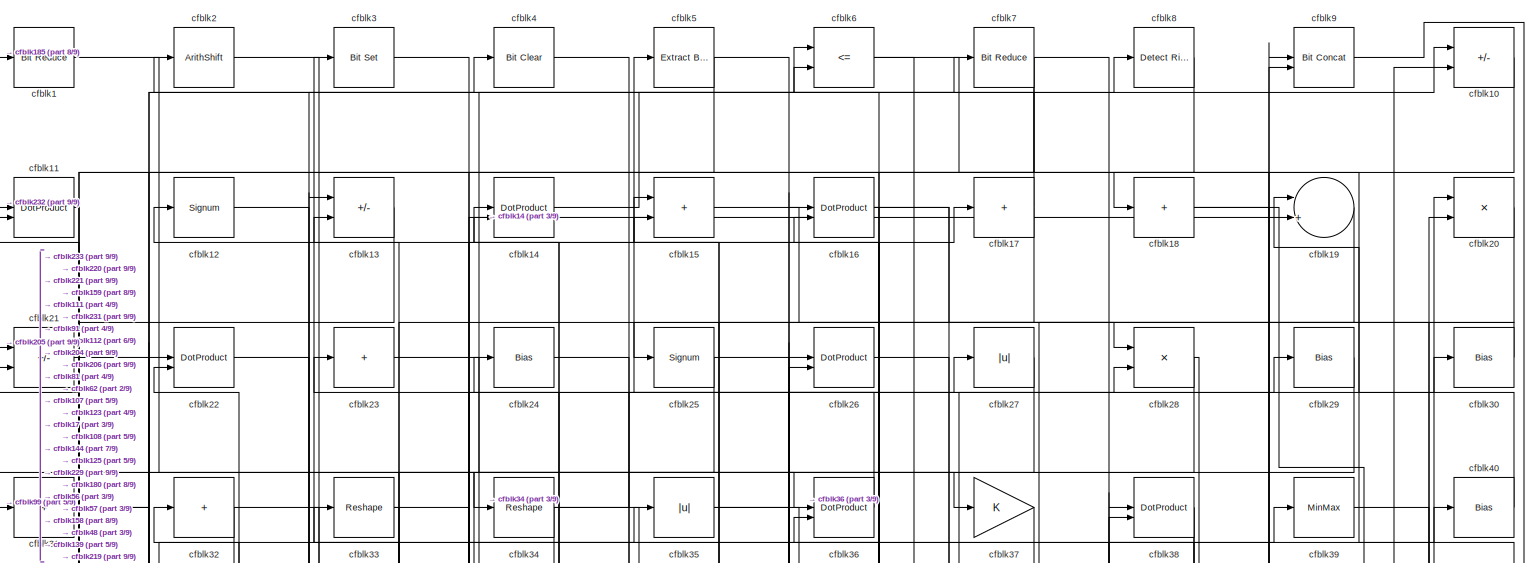
[diagram: root canvas - part 1/9, full width, top band]
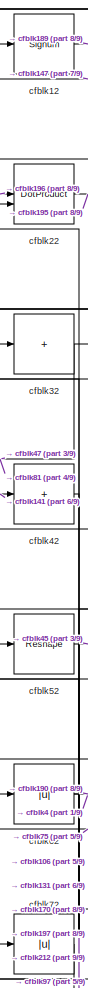
[diagram: root canvas - part 2/9, top left region]
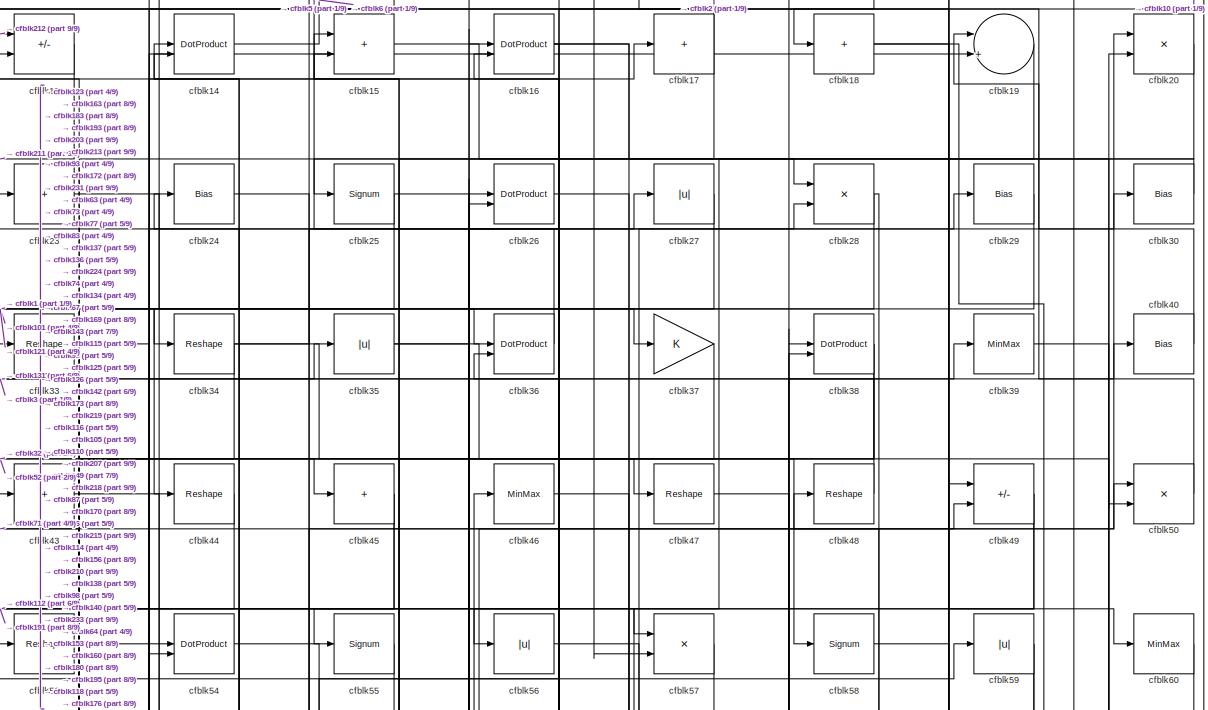
[diagram: root canvas - part 3/9, full width, top band]
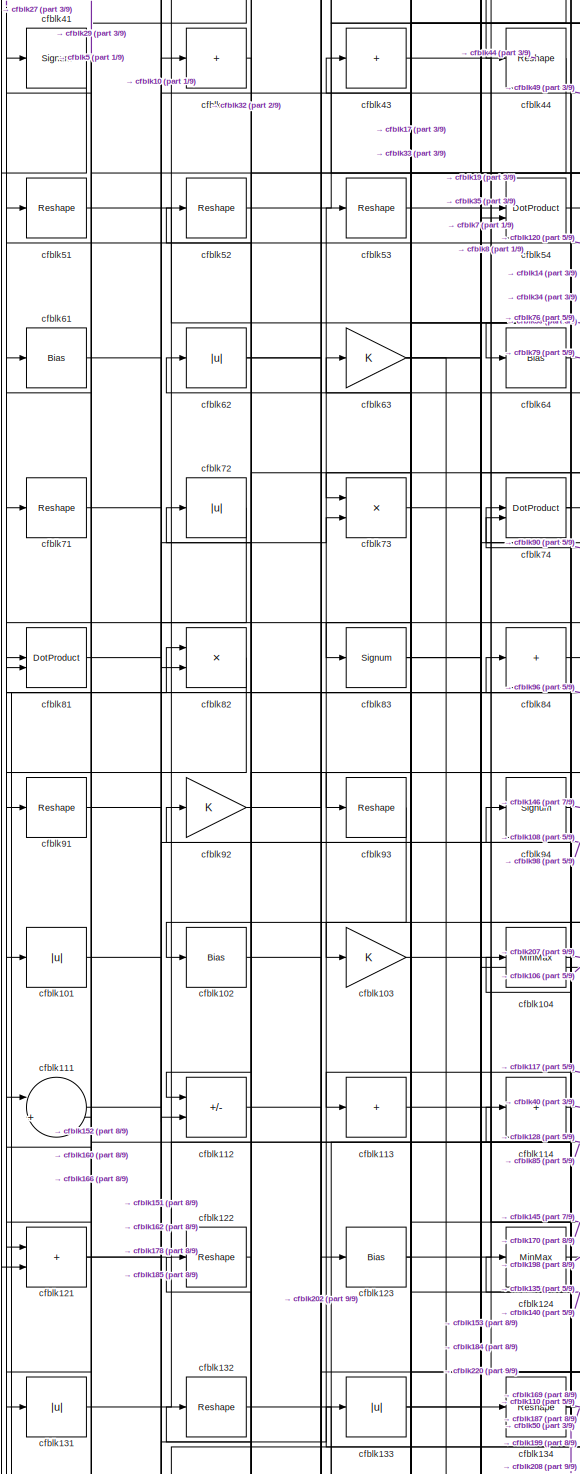
[diagram: root canvas - part 4/9, middle left region]
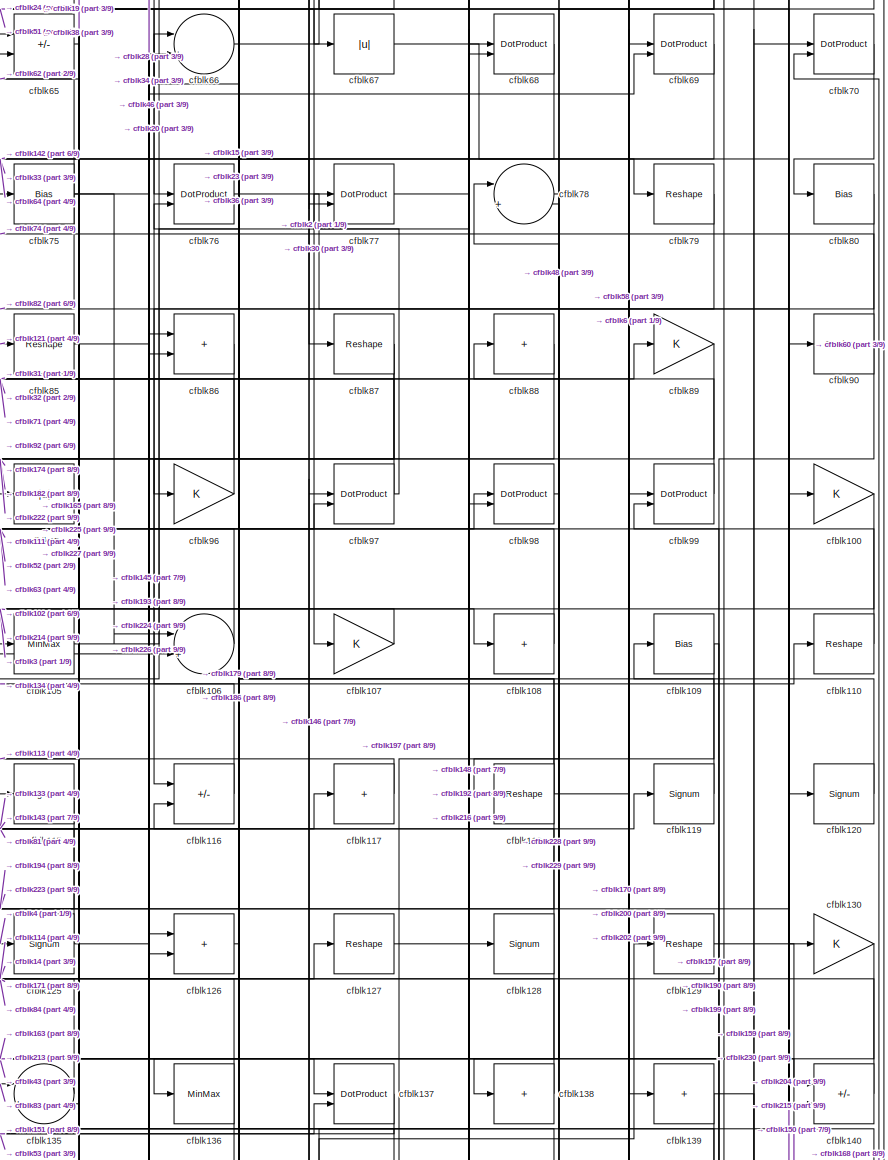
[diagram: root canvas - part 5/9, middle right region]
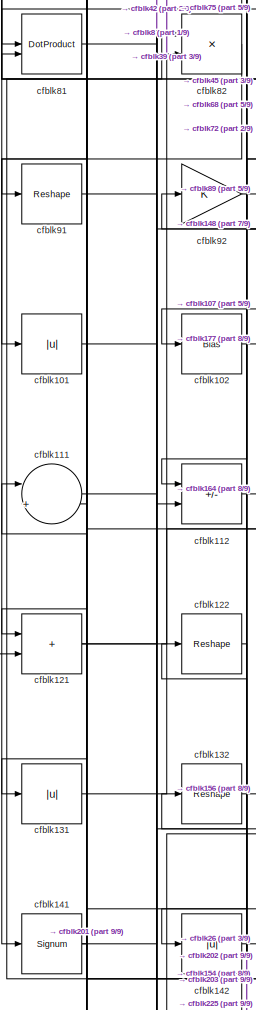
[diagram: root canvas - part 6/9, middle left region]
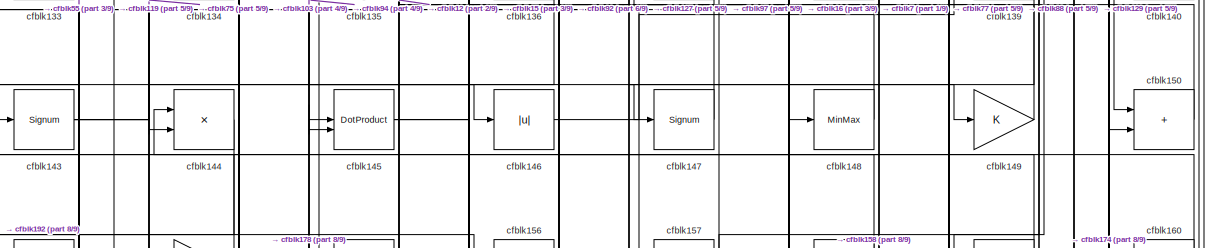
[diagram: root canvas - part 7/9, full width, middle band]
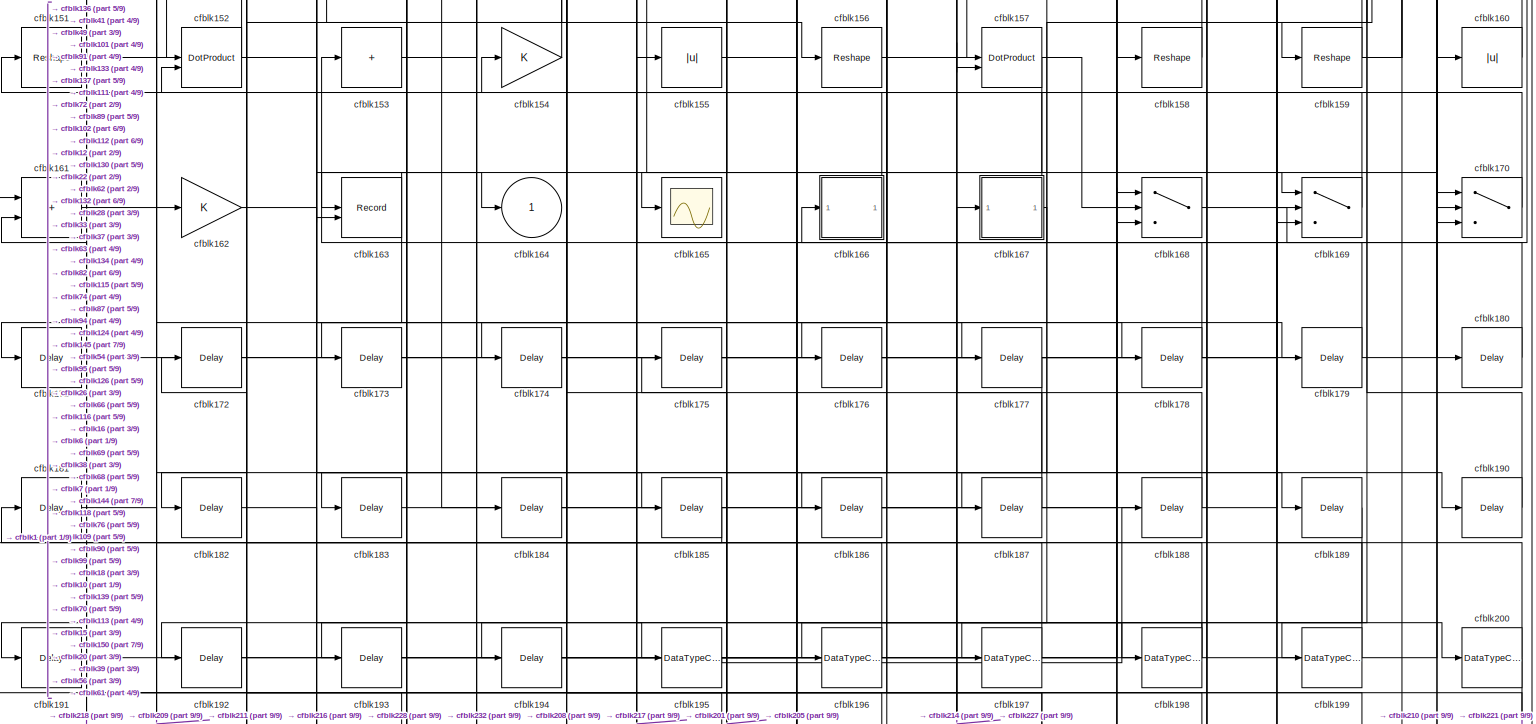
[diagram: root canvas - part 8/9, full width, bottom band]
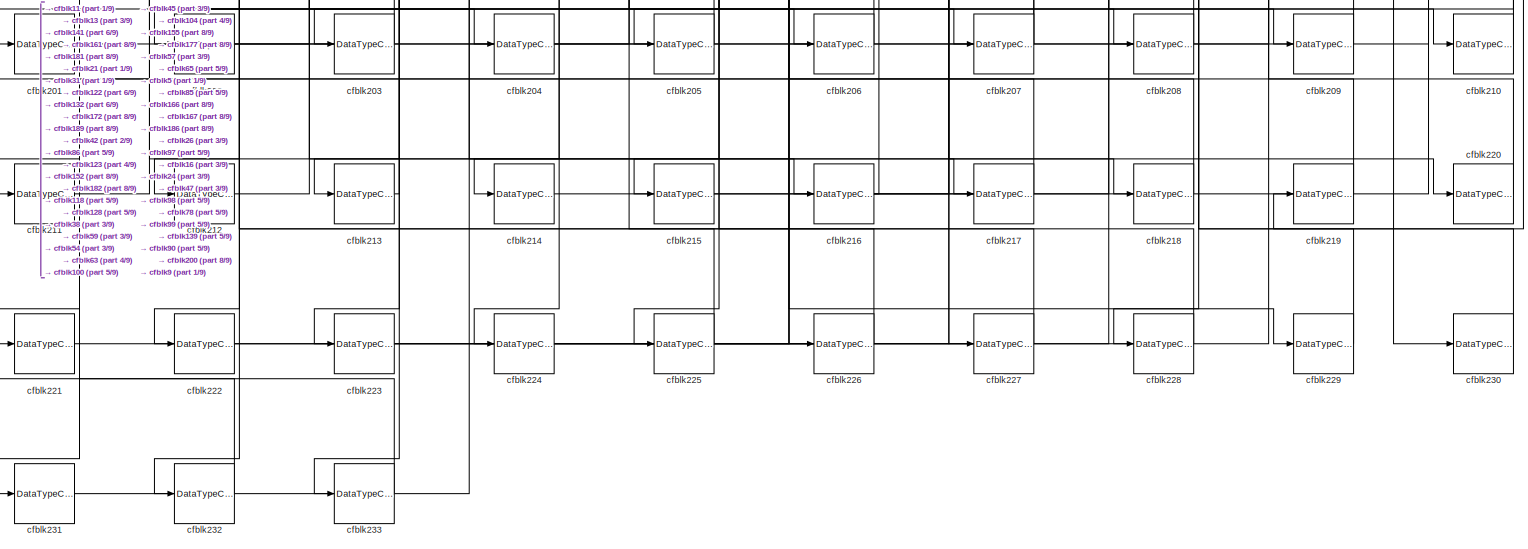
[diagram: root canvas - part 9/9, full width, bottom band]
MODEL slx_c0b3f4425a60
KIND model
CONFIG AbsTol = auto
CONFIG EnableMultiTasking = off
CONFIG FixedStep = auto
CONFIG MaxStep = auto
CONFIG MinStep = auto
CONFIG RelTol = 1e-3
CONFIG SampleTimeConstraint = Unconstrained
CONFIG SolverName = VariableStepAuto
CONFIG StartTime = 0.0
CONFIG StopTime = 10.0
BLOCK [Reference] cfblk1  REF=hdlsllib/Logic and Bit
Operations/Bit Reduce
  SourceBlock = hdlsllib/Logic and Bit\nOperations/Bit Reduce
  SourceType = Bit Reduce
BLOCK [Sum] cfblk10
  IconShape = rectangular
  Inputs = +-
BLOCK [Gain] cfblk100
BLOCK [Abs] cfblk101
  SaturateOnIntegerOverflow = off
BLOCK [Bias] cfblk102
  Bias = 0.0
  SaturateOnIntegerOverflow = off
BLOCK [Gain] cfblk103
BLOCK [MinMax] cfblk104
BLOCK [MinMax] cfblk105
BLOCK [Sum] cfblk106
  Inputs = |++
BLOCK [Gain] cfblk107
BLOCK [Sum] cfblk108
  IconShape = rectangular
  Inputs = +
BLOCK [Bias] cfblk109
  Bias = 0.0
  SaturateOnIntegerOverflow = off
BLOCK [DotProduct] cfblk11
  OutDataTypeStr = Inherit: Inherit via internal rule
BLOCK [Reshape] cfblk110
BLOCK [Sum] cfblk111
  Inputs = |++
BLOCK [Sum] cfblk112
  IconShape = rectangular
  Inputs = +-
BLOCK [Sum] cfblk113
  IconShape = rectangular
  Inputs = +
BLOCK [Sum] cfblk114
  IconShape = rectangular
  Inputs = +
BLOCK [Signum] cfblk115
BLOCK [Sum] cfblk116
  IconShape = rectangular
  Inputs = +-
BLOCK [Sum] cfblk117
  IconShape = rectangular
  Inputs = +
BLOCK [Reshape] cfblk118
BLOCK [Signum] cfblk119
BLOCK [Signum] cfblk12
BLOCK [Signum] cfblk120
BLOCK [Sum] cfblk121
  IconShape = rectangular
BLOCK [Reshape] cfblk122
BLOCK [Bias] cfblk123
  Bias = 0.0
  SaturateOnIntegerOverflow = off
BLOCK [MinMax] cfblk124
BLOCK [Signum] cfblk125
BLOCK [Sum] cfblk126
  IconShape = rectangular
BLOCK [Reshape] cfblk127
BLOCK [Signum] cfblk128
BLOCK [Reshape] cfblk129
BLOCK [Sum] cfblk13
  IconShape = rectangular
  Inputs = +-
BLOCK [Gain] cfblk130
BLOCK [Abs] cfblk131
  SaturateOnIntegerOverflow = off
BLOCK [Reshape] cfblk132
BLOCK [Abs] cfblk133
  SaturateOnIntegerOverflow = off
BLOCK [Reshape] cfblk134
BLOCK [Sum] cfblk135
  Inputs = |++
BLOCK [MinMax] cfblk136
BLOCK [DotProduct] cfblk137
  OutDataTypeStr = Inherit: Inherit via internal rule
BLOCK [Sum] cfblk138
  IconShape = rectangular
  Inputs = +
BLOCK [Sum] cfblk139
  IconShape = rectangular
  Inputs = +
BLOCK [DotProduct] cfblk14
  OutDataTypeStr = Inherit: Inherit via internal rule
BLOCK [Sum] cfblk140
  IconShape = rectangular
  Inputs = +-
BLOCK [Signum] cfblk141
BLOCK [Abs] cfblk142
  SaturateOnIntegerOverflow = off
BLOCK [Signum] cfblk143
BLOCK [Product] cfblk144
  Inputs = */
  RndMeth = Zero
  SaturateOnIntegerOverflow = on
BLOCK [DotProduct] cfblk145
  OutDataTypeStr = Inherit: Inherit via internal rule
BLOCK [Abs] cfblk146
  SaturateOnIntegerOverflow = off
BLOCK [Signum] cfblk147
BLOCK [MinMax] cfblk148
BLOCK [Gain] cfblk149
BLOCK [Sum] cfblk15
  IconShape = rectangular
BLOCK [Sum] cfblk150
  IconShape = rectangular
BLOCK [Reshape] cfblk151
BLOCK [DotProduct] cfblk152
  OutDataTypeStr = Inherit: Inherit via internal rule
BLOCK [Sum] cfblk153
  IconShape = rectangular
  Inputs = +
BLOCK [Gain] cfblk154
BLOCK [Abs] cfblk155
  SaturateOnIntegerOverflow = off
BLOCK [Reshape] cfblk156
BLOCK [DotProduct] cfblk157
  OutDataTypeStr = Inherit: Inherit via internal rule
BLOCK [Reshape] cfblk158
BLOCK [Reshape] cfblk159
BLOCK [DotProduct] cfblk16
  OutDataTypeStr = Inherit: Inherit via internal rule
BLOCK [Abs] cfblk160
  SaturateOnIntegerOverflow = off
BLOCK [Sum] cfblk161
  IconShape = rectangular
BLOCK [Gain] cfblk162
BLOCK [Record] cfblk163
  CompatibilityTag = XY
  FileSettingsInternal = {"entries":[{"content":{"excelSettings":{"content":{},"type":"Streamout.ExcelSettings"}},"type":"Streamout.FileSettingStorage","uuid":""}],"packageUris":["http:\/\/schema.mathworks.com\/mf0\/streamout_blocks\/R2020a"],"version":"1.0"}
  Layout = [1 1]
  SignalsInternal = {"entries":[{"content":{"signals":[{"content":{"blockPath":[],"dimensions":[1],"domain":"","lineColor":"#a2142f","plots":[1],"port":1,"signalID":3197,"signalName":"XY Graph:1"},"type":"RecordBlkView.Signal","uuid":""},{"content":{"blockPath":[],"dimensions":[1],"domain":"","lineColor":"#139fff","plots":[1],"port":2,"signalID":3200,"signalName":"XY Graph:2"},"type":"RecordBlkView.Signal","uuid":""}...<+146ch>
  VisualizationBindings = {"xyplotplugin":{"info":[{"series":[{"bindingParametersList":[{"parameter":"X-Axis","signalID":3197,"signalName":"XY Graph:1"},{"parameter":"Y-Axis","signalID":3200,"signalName":"XY Graph:2"}],"seriesID":41778}],"subplotID":1}]}}
  st = -1
BLOCK [Outport] cfblk164
  VectorParamsAs1DForOutWhenUnconnected = off
BLOCK [Scope] cfblk165
  Floating = off
  NumInputPorts = 1
  ScopeSpecificationString = Simulink.scopes.TimeScopeBlockCfg('CurrentConfiguration', extmgr.ConfigurationSet(extmgr.Configuration('Core','General UI',true),extmgr.Configuration('Core','Source UI',true),extmgr.Configuration('Sources','WiredSimulink',true,'DataLoggingVariableName','ScopeData2','DataLoggingSaveFormat','Array','DataLoggingLimitDataPoints',true,'DataLoggingDecimation','1'),extmgr.Configuration('Visuals','Time Do...<+868ch>
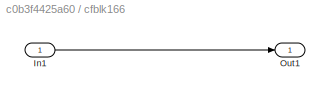
BLOCK [SubSystem] cfblk166
  LibrarySourceBlock = hdlsllib/Ports &\nSubsystems/Subsystem
BLOCK [Inport] cfblk166/In1
BLOCK [Outport] cfblk166/Out1
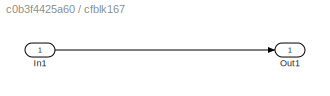
BLOCK [SubSystem] cfblk167
  LibrarySourceBlock = hdlsllib/Ports &\nSubsystems/Subsystem
BLOCK [Inport] cfblk167/In1
BLOCK [Outport] cfblk167/Out1
BLOCK [Switch] cfblk168
  InputSameDT = off
  SaturateOnIntegerOverflow = off
BLOCK [Switch] cfblk169
  InputSameDT = off
  SaturateOnIntegerOverflow = off
BLOCK [Sum] cfblk17
  IconShape = rectangular
  Inputs = +
BLOCK [Switch] cfblk170
  InputSameDT = off
  SaturateOnIntegerOverflow = off
BLOCK [Delay] cfblk171
  InputPortMap = u0
  SampleTime = 1
BLOCK [Delay] cfblk172
  InputPortMap = u0
  SampleTime = 1
BLOCK [Delay] cfblk173
  InputPortMap = u0
  SampleTime = 1
BLOCK [Delay] cfblk174
  InputPortMap = u0
  SampleTime = 1
BLOCK [Delay] cfblk175
  InputPortMap = u0
  SampleTime = 1
BLOCK [Delay] cfblk176
  InputPortMap = u0
  SampleTime = 1
BLOCK [Delay] cfblk177
  InputPortMap = u0
  SampleTime = 1
BLOCK [Delay] cfblk178
  InputPortMap = u0
  SampleTime = 1
BLOCK [Delay] cfblk179
  InputPortMap = u0
  SampleTime = 1
BLOCK [Sum] cfblk18
  IconShape = rectangular
  Inputs = +
BLOCK [Delay] cfblk180
  InputPortMap = u0
  SampleTime = 1
BLOCK [Delay] cfblk181
  InputPortMap = u0
  SampleTime = 1
BLOCK [Delay] cfblk182
  InputPortMap = u0
  SampleTime = 1
BLOCK [Delay] cfblk183
  InputPortMap = u0
  SampleTime = 1
BLOCK [Delay] cfblk184
  InputPortMap = u0
  SampleTime = 1
BLOCK [Delay] cfblk185
  InputPortMap = u0
  SampleTime = 1
BLOCK [Delay] cfblk186
  InputPortMap = u0
  SampleTime = 1
BLOCK [Delay] cfblk187
  InputPortMap = u0
  SampleTime = 1
BLOCK [Delay] cfblk188
  InputPortMap = u0
  SampleTime = 1
BLOCK [Delay] cfblk189
  InputPortMap = u0
  SampleTime = 1
BLOCK [Sum] cfblk19
  Inputs = |++
BLOCK [Delay] cfblk190
  InputPortMap = u0
  SampleTime = 1
BLOCK [Delay] cfblk191
  InputPortMap = u0
  SampleTime = 1
BLOCK [Delay] cfblk192
  InputPortMap = u0
  SampleTime = 1
BLOCK [Delay] cfblk193
  InputPortMap = u0
  SampleTime = 1
BLOCK [Delay] cfblk194
  InputPortMap = u0
  SampleTime = 1
BLOCK [DataTypeConversion] cfblk195
  RndMeth = Floor
  SaturateOnIntegerOverflow = off
BLOCK [DataTypeConversion] cfblk196
  OutDataTypeStr = uint8
  RndMeth = Floor
  SaturateOnIntegerOverflow = off
BLOCK [DataTypeConversion] cfblk197
  OutDataTypeStr = uint8
  RndMeth = Floor
  SaturateOnIntegerOverflow = off
BLOCK [DataTypeConversion] cfblk198
  RndMeth = Floor
  SaturateOnIntegerOverflow = off
BLOCK [DataTypeConversion] cfblk199
  OutDataTypeStr = uint8
  RndMeth = Floor
  SaturateOnIntegerOverflow = off
BLOCK [ArithShift] cfblk2
  BitShiftNumber = 8
  InputPortMap = u0
BLOCK [Product] cfblk20
  Inputs = */
  RndMeth = Zero
  SaturateOnIntegerOverflow = on
BLOCK [DataTypeConversion] cfblk200
  RndMeth = Floor
  SaturateOnIntegerOverflow = off
BLOCK [DataTypeConversion] cfblk201
  OutDataTypeStr = uint8
  RndMeth = Floor
  SaturateOnIntegerOverflow = off
BLOCK [DataTypeConversion] cfblk202
  RndMeth = Floor
  SaturateOnIntegerOverflow = off
BLOCK [DataTypeConversion] cfblk203
  OutDataTypeStr = uint8
  RndMeth = Floor
  SaturateOnIntegerOverflow = off
BLOCK [DataTypeConversion] cfblk204
  OutDataTypeStr = uint8
  RndMeth = Floor
  SaturateOnIntegerOverflow = off
BLOCK [DataTypeConversion] cfblk205
  OutDataTypeStr = uint8
  RndMeth = Floor
  SaturateOnIntegerOverflow = off
BLOCK [DataTypeConversion] cfblk206
  OutDataTypeStr = uint8
  RndMeth = Floor
  SaturateOnIntegerOverflow = off
BLOCK [DataTypeConversion] cfblk207
  RndMeth = Floor
  SaturateOnIntegerOverflow = off
BLOCK [DataTypeConversion] cfblk208
  OutDataTypeStr = uint8
  RndMeth = Floor
  SaturateOnIntegerOverflow = off
BLOCK [DataTypeConversion] cfblk209
  OutDataTypeStr = uint8
  RndMeth = Floor
  SaturateOnIntegerOverflow = off
BLOCK [Sum] cfblk21
  IconShape = rectangular
  Inputs = +-
BLOCK [DataTypeConversion] cfblk210
  OutDataTypeStr = uint8
  RndMeth = Floor
  SaturateOnIntegerOverflow = off
BLOCK [DataTypeConversion] cfblk211
  OutDataTypeStr = uint8
  RndMeth = Floor
  SaturateOnIntegerOverflow = off
BLOCK [DataTypeConversion] cfblk212
  OutDataTypeStr = uint8
  RndMeth = Floor
  SaturateOnIntegerOverflow = off
BLOCK [DataTypeConversion] cfblk213
  OutDataTypeStr = uint8
  RndMeth = Floor
  SaturateOnIntegerOverflow = off
BLOCK [DataTypeConversion] cfblk214
  OutDataTypeStr = uint8
  RndMeth = Floor
  SaturateOnIntegerOverflow = off
BLOCK [DataTypeConversion] cfblk215
  OutDataTypeStr = uint8
  RndMeth = Floor
  SaturateOnIntegerOverflow = off
BLOCK [DataTypeConversion] cfblk216
  RndMeth = Floor
  SaturateOnIntegerOverflow = off
BLOCK [DataTypeConversion] cfblk217
  OutDataTypeStr = uint8
  RndMeth = Floor
  SaturateOnIntegerOverflow = off
BLOCK [DataTypeConversion] cfblk218
  OutDataTypeStr = uint8
  RndMeth = Floor
  SaturateOnIntegerOverflow = off
BLOCK [DataTypeConversion] cfblk219
  OutDataTypeStr = uint8
  RndMeth = Floor
  SaturateOnIntegerOverflow = off
BLOCK [DotProduct] cfblk22
  OutDataTypeStr = Inherit: Inherit via internal rule
BLOCK [DataTypeConversion] cfblk220
  OutDataTypeStr = uint8
  RndMeth = Floor
  SaturateOnIntegerOverflow = off
BLOCK [DataTypeConversion] cfblk221
  OutDataTypeStr = uint8
  RndMeth = Floor
  SaturateOnIntegerOverflow = off
BLOCK [DataTypeConversion] cfblk222
  OutDataTypeStr = uint8
  RndMeth = Floor
  SaturateOnIntegerOverflow = off
BLOCK [DataTypeConversion] cfblk223
  OutDataTypeStr = uint8
  RndMeth = Floor
  SaturateOnIntegerOverflow = off
BLOCK [DataTypeConversion] cfblk224
  OutDataTypeStr = uint8
  RndMeth = Floor
  SaturateOnIntegerOverflow = off
BLOCK [DataTypeConversion] cfblk225
  RndMeth = Floor
  SaturateOnIntegerOverflow = off
BLOCK [DataTypeConversion] cfblk226
  OutDataTypeStr = uint8
  RndMeth = Floor
  SaturateOnIntegerOverflow = off
BLOCK [DataTypeConversion] cfblk227
  OutDataTypeStr = uint8
  RndMeth = Floor
  SaturateOnIntegerOverflow = off
BLOCK [DataTypeConversion] cfblk228
  OutDataTypeStr = uint8
  RndMeth = Floor
  SaturateOnIntegerOverflow = off
BLOCK [DataTypeConversion] cfblk229
  OutDataTypeStr = uint8
  RndMeth = Floor
  SaturateOnIntegerOverflow = off
BLOCK [Sum] cfblk23
  IconShape = rectangular
  Inputs = +
BLOCK [DataTypeConversion] cfblk230
  OutDataTypeStr = uint8
  RndMeth = Floor
  SaturateOnIntegerOverflow = off
BLOCK [DataTypeConversion] cfblk231
  OutDataTypeStr = uint8
  RndMeth = Floor
  SaturateOnIntegerOverflow = off
BLOCK [DataTypeConversion] cfblk232
  OutDataTypeStr = uint8
  RndMeth = Floor
  SaturateOnIntegerOverflow = off
BLOCK [DataTypeConversion] cfblk233
  OutDataTypeStr = uint8
  RndMeth = Floor
  SaturateOnIntegerOverflow = off
BLOCK [Bias] cfblk24
  Bias = 0.0
  SaturateOnIntegerOverflow = off
BLOCK [Signum] cfblk25
BLOCK [DotProduct] cfblk26
  OutDataTypeStr = Inherit: Inherit via internal rule
BLOCK [Abs] cfblk27
  SaturateOnIntegerOverflow = off
BLOCK [Product] cfblk28
  Inputs = */
  RndMeth = Zero
  SaturateOnIntegerOverflow = on
BLOCK [Bias] cfblk29
  Bias = 0.0
  SaturateOnIntegerOverflow = off
BLOCK [Reference] cfblk3  REF=simulink/Logic and Bit
Operations/Bit Set
  LibrarySourceBlock = hdlsllib/Logic and Bit\nOperations/Bit Set
  SourceBlock = simulink/Logic and Bit\nOperations/Bit Set
  SourceType = Bit Set
BLOCK [Bias] cfblk30
  Bias = 0.0
  SaturateOnIntegerOverflow = off
BLOCK [Sum] cfblk31
  IconShape = rectangular
  Inputs = +
BLOCK [Sum] cfblk32
  IconShape = rectangular
  Inputs = +
BLOCK [Reshape] cfblk33
BLOCK [Reshape] cfblk34
BLOCK [Abs] cfblk35
  SaturateOnIntegerOverflow = off
BLOCK [DotProduct] cfblk36
  OutDataTypeStr = Inherit: Inherit via internal rule
BLOCK [Gain] cfblk37
BLOCK [DotProduct] cfblk38
  OutDataTypeStr = Inherit: Inherit via internal rule
BLOCK [MinMax] cfblk39
BLOCK [Reference] cfblk4  REF=simulink/Logic and Bit
Operations/Bit Clear
  LibrarySourceBlock = hdlsllib/Logic and Bit\nOperations/Bit Clear
  SourceBlock = simulink/Logic and Bit\nOperations/Bit Clear
  SourceType = Bit Clear
BLOCK [Bias] cfblk40
  Bias = 0.0
  SaturateOnIntegerOverflow = off
BLOCK [Signum] cfblk41
BLOCK [Sum] cfblk42
  IconShape = rectangular
  Inputs = +
BLOCK [Sum] cfblk43
  IconShape = rectangular
  Inputs = +
BLOCK [Reshape] cfblk44
BLOCK [Sum] cfblk45
  IconShape = rectangular
  Inputs = +
BLOCK [MinMax] cfblk46
BLOCK [Reshape] cfblk47
BLOCK [Reshape] cfblk48
BLOCK [Sum] cfblk49
  IconShape = rectangular
  Inputs = +-
BLOCK [Reference] cfblk5  REF=simulink/Logic and Bit
Operations/Extract Bits
  LibrarySourceBlock = hdlsllib/Logic and Bit\nOperations/Extract Bits
  SourceBlock = simulink/Logic and Bit\nOperations/Extract Bits
  SourceType = Extract Bits
BLOCK [Product] cfblk50
  Inputs = */
  RndMeth = Zero
  SaturateOnIntegerOverflow = on
BLOCK [Reshape] cfblk51
BLOCK [Reshape] cfblk52
BLOCK [Reshape] cfblk53
BLOCK [DotProduct] cfblk54
  OutDataTypeStr = Inherit: Inherit via internal rule
BLOCK [Signum] cfblk55
BLOCK [Abs] cfblk56
  SaturateOnIntegerOverflow = off
BLOCK [Product] cfblk57
  Inputs = */
  RndMeth = Zero
  SaturateOnIntegerOverflow = on
BLOCK [Signum] cfblk58
BLOCK [Abs] cfblk59
  SaturateOnIntegerOverflow = off
BLOCK [RelationalOperator] cfblk6
  InputSameDT = off
  Operator = <=
  OutDataTypeStr = boolean
BLOCK [MinMax] cfblk60
BLOCK [Bias] cfblk61
  Bias = 0.0
  SaturateOnIntegerOverflow = off
BLOCK [Abs] cfblk62
  SaturateOnIntegerOverflow = off
BLOCK [Gain] cfblk63
BLOCK [Bias] cfblk64
  Bias = 0.0
  SaturateOnIntegerOverflow = off
BLOCK [Sum] cfblk65
  IconShape = rectangular
  Inputs = +-
BLOCK [Sum] cfblk66
  Inputs = |++
BLOCK [Abs] cfblk67
  SaturateOnIntegerOverflow = off
BLOCK [DotProduct] cfblk68
  OutDataTypeStr = Inherit: Inherit via internal rule
BLOCK [DotProduct] cfblk69
  OutDataTypeStr = Inherit: Inherit via internal rule
BLOCK [Reference] cfblk7  REF=hdlsllib/Logic and Bit
Operations/Bit Reduce
  SourceBlock = hdlsllib/Logic and Bit\nOperations/Bit Reduce
  SourceType = Bit Reduce
BLOCK [DotProduct] cfblk70
  OutDataTypeStr = Inherit: Inherit via internal rule
BLOCK [Reshape] cfblk71
BLOCK [Abs] cfblk72
  SaturateOnIntegerOverflow = off
BLOCK [Product] cfblk73
  Inputs = */
  RndMeth = Zero
  SaturateOnIntegerOverflow = on
BLOCK [DotProduct] cfblk74
  OutDataTypeStr = Inherit: Inherit via internal rule
BLOCK [Bias] cfblk75
  Bias = 0.0
  SaturateOnIntegerOverflow = off
BLOCK [DotProduct] cfblk76
  OutDataTypeStr = Inherit: Inherit via internal rule
BLOCK [DotProduct] cfblk77
  OutDataTypeStr = Inherit: Inherit via internal rule
BLOCK [Sum] cfblk78
  Inputs = |++
BLOCK [Reshape] cfblk79
BLOCK [Reference] cfblk8  REF=hdlsllib/Logic and Bit
Operations/Detect Rise
Positive
  SourceBlock = hdlsllib/Logic and Bit\nOperations/Detect Rise\nPositive
  SourceType = Detect Rise Positive
BLOCK [Bias] cfblk80
  Bias = 0.0
  SaturateOnIntegerOverflow = off
BLOCK [DotProduct] cfblk81
  OutDataTypeStr = Inherit: Inherit via internal rule
BLOCK [Product] cfblk82
  Inputs = */
  RndMeth = Zero
  SaturateOnIntegerOverflow = on
BLOCK [Signum] cfblk83
BLOCK [Sum] cfblk84
  IconShape = rectangular
  Inputs = +
BLOCK [Reshape] cfblk85
BLOCK [Sum] cfblk86
  IconShape = rectangular
BLOCK [Reshape] cfblk87
BLOCK [Sum] cfblk88
  IconShape = rectangular
  Inputs = +
BLOCK [Gain] cfblk89
BLOCK [Reference] cfblk9  REF=hdlsllib/Logic and Bit
Operations/Bit Concat
  SourceBlock = hdlsllib/Logic and Bit\nOperations/Bit Concat
  SourceType = Bit Concat
BLOCK [Reshape] cfblk90
BLOCK [Reshape] cfblk91
BLOCK [Gain] cfblk92
BLOCK [Reshape] cfblk93
BLOCK [Signum] cfblk94
BLOCK [Abs] cfblk95
  SaturateOnIntegerOverflow = off
BLOCK [Gain] cfblk96
BLOCK [DotProduct] cfblk97
  OutDataTypeStr = Inherit: Inherit via internal rule
BLOCK [DotProduct] cfblk98
  OutDataTypeStr = Inherit: Inherit via internal rule
BLOCK [DotProduct] cfblk99
  OutDataTypeStr = Inherit: Inherit via internal rule
LINE cfblk100:1 -> cfblk214:1
LINE cfblk101:1 -> cfblk185:1
LINE cfblk102:1 -> cfblk177:1
LINE cfblk103:1 -> cfblk145:2
LINE cfblk104:1 -> cfblk207:1
LINE cfblk105:1 -> cfblk20:1
LINE cfblk106:1 -> cfblk52:1
LINE cfblk107:1 -> cfblk102:1
LINE cfblk108:1 -> cfblk63:1
NET cfblk109:1 -> cfblk197:1, cfblk199:1
LINE cfblk10:1 -> cfblk56:1
LINE cfblk110:1 -> cfblk36:2
LINE cfblk111:1 -> cfblk98:1
LINE cfblk112:1 -> cfblk164:1
LINE cfblk113:1 -> cfblk170:1
LINE cfblk114:1 -> cfblk40:1
LINE cfblk115:1 -> cfblk194:1
LINE cfblk116:1 -> cfblk46:1
LINE cfblk117:1 -> cfblk113:1
NET cfblk118:1 -> cfblk15:2, cfblk170:3, cfblk223:1, cfblk23:1
LINE cfblk119:1 -> cfblk109:1
LINE cfblk11:1 -> cfblk231:1
LINE cfblk120:1 -> cfblk51:1
NET cfblk121:1 -> cfblk73:2, cfblk85:1
LINE cfblk122:1 -> cfblk202:1
NET cfblk123:1 -> cfblk33:1, cfblk8:1
LINE cfblk124:1 -> cfblk198:1
NET cfblk125:1 -> cfblk105:1, cfblk28:2
LINE cfblk126:1 -> cfblk66:1
LINE cfblk127:1 -> cfblk68:2
NET cfblk128:1 -> cfblk213:1, cfblk81:2
LINE cfblk129:1 -> cfblk150:1
LINE cfblk12:1 -> cfblk189:1
LINE cfblk130:1 -> cfblk163:2
LINE cfblk131:1 -> cfblk39:1
LINE cfblk132:1 -> cfblk156:1
NET cfblk133:1 -> cfblk106:2, cfblk117:1
NET cfblk134:1 -> cfblk110:1, cfblk50:1
LINE cfblk135:1 -> cfblk84:1
NET cfblk136:1 -> cfblk14:2, cfblk171:1
LINE cfblk137:1 -> cfblk53:1
LINE cfblk138:1 -> cfblk43:1
NET cfblk139:1 -> cfblk157:2, cfblk230:1
LINE cfblk13:1 -> cfblk211:1
LINE cfblk140:1 -> cfblk114:1
NET cfblk141:1 -> cfblk201:1, cfblk42:1
LINE cfblk142:1 -> cfblk26:2
NET cfblk143:1 -> cfblk119:1, cfblk147:1, cfblk75:1
LINE cfblk144:1 -> cfblk192:1
NET cfblk145:1 -> cfblk127:1, cfblk97:2
LINE cfblk146:1 -> cfblk129:1
LINE cfblk147:1 -> cfblk12:1
LINE cfblk148:1 -> cfblk92:1
LINE cfblk149:1 -> cfblk15:1
LINE cfblk14:1 -> cfblk6:1
LINE cfblk150:1 -> cfblk88:1
NET cfblk151:1 -> cfblk133:1, cfblk137:2
NET cfblk152:1 -> cfblk111:1, cfblk208:1
LINE cfblk153:1 -> cfblk134:1
LINE cfblk154:1 -> cfblk82:1
LINE cfblk155:1 -> cfblk200:1
LINE cfblk156:1 -> cfblk38:1
NET cfblk157:1 -> cfblk168:2, cfblk173:1
LINE cfblk158:1 -> cfblk144:1
NET cfblk159:1 -> cfblk10:2, cfblk70:1, cfblk76:2
LINE cfblk15:1 -> cfblk160:1
LINE cfblk160:1 -> cfblk61:1
LINE cfblk161:1 -> cfblk216:1
LINE cfblk162:1 -> cfblk179:1
LINE cfblk166/In1:1 -> cfblk166/Out1:1
LINE cfblk166:1 -> cfblk41:1
LINE cfblk167/In1:1 -> cfblk167/Out1:1
NET cfblk167:1 -> cfblk154:1, cfblk187:1
LINE cfblk168:1 -> cfblk70:2
LINE cfblk169:1 -> cfblk94:1
NET cfblk16:1 -> cfblk149:1, cfblk176:1, cfblk28:1
LINE cfblk170:1 -> cfblk72:1
LINE cfblk171:1 -> cfblk169:2
LINE cfblk172:1 -> cfblk54:2
LINE cfblk173:1 -> cfblk26:1
LINE cfblk174:1 -> cfblk150:2
LINE cfblk175:1 -> cfblk168:1
LINE cfblk176:1 -> cfblk49:1
LINE cfblk177:1 -> cfblk205:1
LINE cfblk178:1 -> cfblk145:1
LINE cfblk179:1 -> cfblk116:2
NET cfblk17:1 -> cfblk2:1, cfblk83:1
LINE cfblk180:1 -> cfblk6:2
LINE cfblk181:1 -> cfblk209:1
LINE cfblk182:1 -> cfblk217:1
LINE cfblk183:1 -> cfblk168:3
LINE cfblk184:1 -> cfblk169:3
LINE cfblk185:1 -> cfblk1:1
LINE cfblk186:1 -> cfblk227:1
LINE cfblk187:1 -> cfblk74:2
LINE cfblk188:1 -> cfblk157:1
LINE cfblk189:1 -> cfblk232:1
NET cfblk18:1 -> cfblk153:1, cfblk60:1
LINE cfblk190:1 -> cfblk99:2
LINE cfblk191:1 -> cfblk38:2
LINE cfblk192:1 -> cfblk68:1
LINE cfblk193:1 -> cfblk66:2
LINE cfblk194:1 -> cfblk126:2
NET cfblk195:1 -> cfblk175:1, cfblk188:1, cfblk20:2
LINE cfblk196:1 -> cfblk22:1
LINE cfblk197:1 -> cfblk22:2
NET cfblk198:1 -> cfblk151:1, cfblk196:1
LINE cfblk199:1 -> cfblk124:1
LINE cfblk19:1 -> cfblk95:1
LINE cfblk1:1 -> cfblk34:1
NET cfblk200:1 -> cfblk221:1, cfblk69:1
LINE cfblk201:1 -> cfblk155:1
NET cfblk202:1 -> cfblk123:1, cfblk99:1
LINE cfblk203:1 -> cfblk122:1
LINE cfblk204:1 -> cfblk90:1
LINE cfblk205:1 -> cfblk21:1
LINE cfblk206:1 -> cfblk21:2
NET cfblk207:1 -> cfblk16:2, cfblk24:1
LINE cfblk208:1 -> cfblk104:1
LINE cfblk209:1 -> cfblk152:2
LINE cfblk20:1 -> cfblk57:1
LINE cfblk210:1 -> cfblk181:1
LINE cfblk211:1 -> cfblk152:1
LINE cfblk212:1 -> cfblk13:1
LINE cfblk213:1 -> cfblk13:2
LINE cfblk214:1 -> cfblk167:1
LINE cfblk215:1 -> cfblk100:1
NET cfblk216:1 -> cfblk166:1, cfblk98:2
LINE cfblk217:1 -> cfblk161:1
LINE cfblk218:1 -> cfblk161:2
LINE cfblk219:1 -> cfblk16:1
LINE cfblk21:1 -> cfblk204:1
LINE cfblk220:1 -> cfblk9:1
LINE cfblk221:1 -> cfblk9:2
LINE cfblk222:1 -> cfblk97:1
LINE cfblk223:1 -> cfblk86:1
LINE cfblk224:1 -> cfblk86:2
NET cfblk225:1 -> cfblk128:1, cfblk132:1
LINE cfblk226:1 -> cfblk65:1
LINE cfblk227:1 -> cfblk65:2
LINE cfblk228:1 -> cfblk172:1
LINE cfblk229:1 -> cfblk78:1
LINE cfblk22:1 -> cfblk195:1
LINE cfblk230:1 -> cfblk78:2
LINE cfblk231:1 -> cfblk54:1
LINE cfblk232:1 -> cfblk11:1
LINE cfblk233:1 -> cfblk11:2
LINE cfblk23:1 -> cfblk36:1
LINE cfblk24:1 -> cfblk67:1
NET cfblk25:1 -> cfblk37:1, cfblk44:1
LINE cfblk26:1 -> cfblk218:1
LINE cfblk27:1 -> cfblk101:1
NET cfblk28:1 -> cfblk138:1, cfblk183:1
LINE cfblk29:1 -> cfblk121:1
LINE cfblk2:1 -> cfblk107:1
LINE cfblk30:1 -> cfblk25:1
NET cfblk31:1 -> cfblk206:1, cfblk7:1
NET cfblk32:1 -> cfblk47:1, cfblk81:1
NET cfblk33:1 -> cfblk193:1, cfblk77:2
NET cfblk34:1 -> cfblk126:1, cfblk29:1, cfblk73:1
NET cfblk35:1 -> cfblk50:2, cfblk58:1
LINE cfblk36:1 -> cfblk5:1
LINE cfblk37:1 -> cfblk163:1
NET cfblk38:1 -> cfblk115:1, cfblk203:1
LINE cfblk39:1 -> cfblk180:1
LINE cfblk3:1 -> cfblk108:1
LINE cfblk40:1 -> cfblk18:1
LINE cfblk41:1 -> cfblk121:2
LINE cfblk42:1 -> cfblk212:1
LINE cfblk43:1 -> cfblk137:1
LINE cfblk44:1 -> cfblk93:1
NET cfblk45:1 -> cfblk112:1, cfblk224:1
LINE cfblk46:1 -> cfblk87:1
LINE cfblk47:1 -> cfblk210:1
LINE cfblk48:1 -> cfblk3:1
NET cfblk49:1 -> cfblk191:1, cfblk55:1
LINE cfblk4:1 -> cfblk125:1
LINE cfblk50:1 -> cfblk19:1
LINE cfblk51:1 -> cfblk76:1
LINE cfblk52:1 -> cfblk45:1
LINE cfblk53:1 -> cfblk17:1
LINE cfblk54:1 -> cfblk169:1
LINE cfblk55:1 -> cfblk143:1
LINE cfblk56:1 -> cfblk170:2
LINE cfblk57:1 -> cfblk215:1
LINE cfblk58:1 -> cfblk140:1
NET cfblk59:1 -> cfblk233:1, cfblk64:1
NET cfblk5:1 -> cfblk229:1, cfblk91:1
LINE cfblk60:1 -> cfblk118:1
LINE cfblk61:1 -> cfblk162:1
NET cfblk62:1 -> cfblk190:1, cfblk4:1
NET cfblk63:1 -> cfblk184:1, cfblk220:1, cfblk27:1
LINE cfblk64:1 -> cfblk79:1
LINE cfblk65:1 -> cfblk225:1
LINE cfblk66:1 -> cfblk30:1
LINE cfblk67:1 -> cfblk120:1
LINE cfblk68:1 -> cfblk142:1
LINE cfblk69:1 -> cfblk186:1
NET cfblk6:1 -> cfblk139:1, cfblk57:2
LINE cfblk70:1 -> cfblk80:1
LINE cfblk71:1 -> cfblk49:2
LINE cfblk72:1 -> cfblk131:1
LINE cfblk73:1 -> cfblk19:2
NET cfblk74:1 -> cfblk14:1, cfblk59:1
NET cfblk75:1 -> cfblk106:1, cfblk62:1, cfblk69:2, cfblk82:2
LINE cfblk76:1 -> cfblk130:1
LINE cfblk77:1 -> cfblk148:1
LINE cfblk78:1 -> cfblk228:1
LINE cfblk79:1 -> cfblk135:2
NET cfblk7:1 -> cfblk111:2, cfblk144:2, cfblk158:1
LINE cfblk80:1 -> cfblk116:1
LINE cfblk81:1 -> cfblk10:1
LINE cfblk82:1 -> cfblk141:1
NET cfblk83:1 -> cfblk135:1, cfblk35:1
LINE cfblk84:1 -> cfblk140:2
LINE cfblk85:1 -> cfblk226:1
LINE cfblk86:1 -> cfblk222:1
NET cfblk87:1 -> cfblk174:1, cfblk96:1
LINE cfblk88:1 -> cfblk136:1
LINE cfblk89:1 -> cfblk182:1
LINE cfblk8:1 -> cfblk112:2
NET cfblk90:1 -> cfblk159:1, cfblk74:1
LINE cfblk91:1 -> cfblk178:1
LINE cfblk92:1 -> cfblk89:1
LINE cfblk93:1 -> cfblk103:1
LINE cfblk94:1 -> cfblk146:1
LINE cfblk95:1 -> cfblk165:1
LINE cfblk96:1 -> cfblk71:1
NET cfblk97:1 -> cfblk32:1, cfblk77:1
LINE cfblk98:1 -> cfblk48:1
LINE cfblk99:1 -> cfblk31:1
LINE cfblk9:1 -> cfblk219:1
note: NET lines group one-source signal fan-out (src -> all destinations, sorted); 1:1 wires keep LINE
